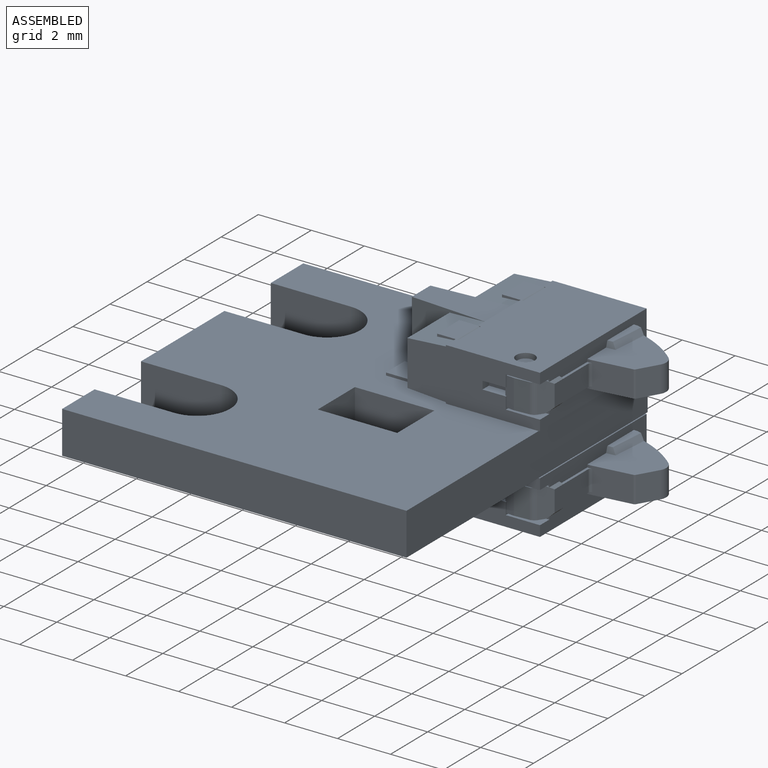
[diagram: assembled view]
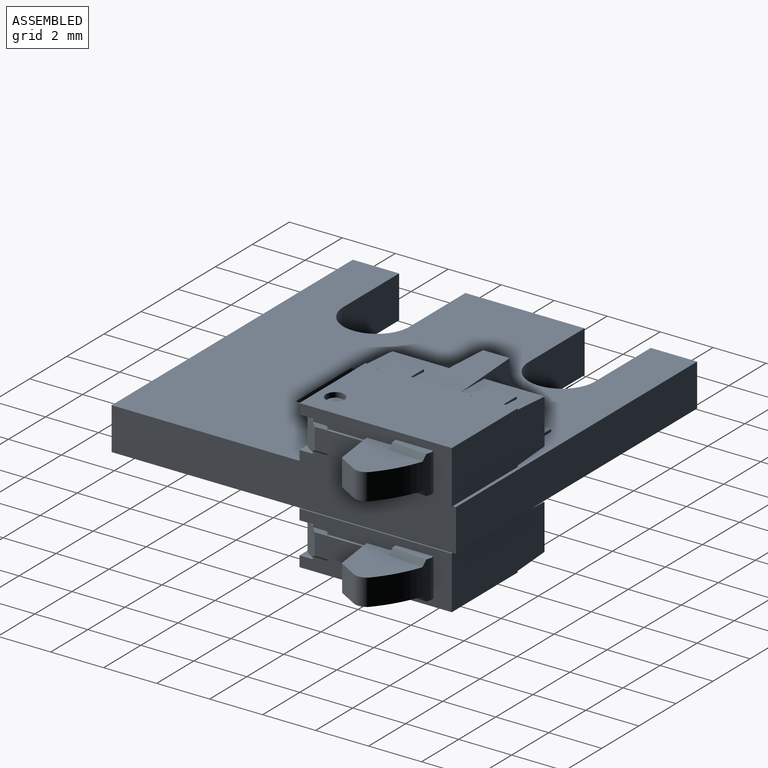
[diagram: assembled view, second angle]
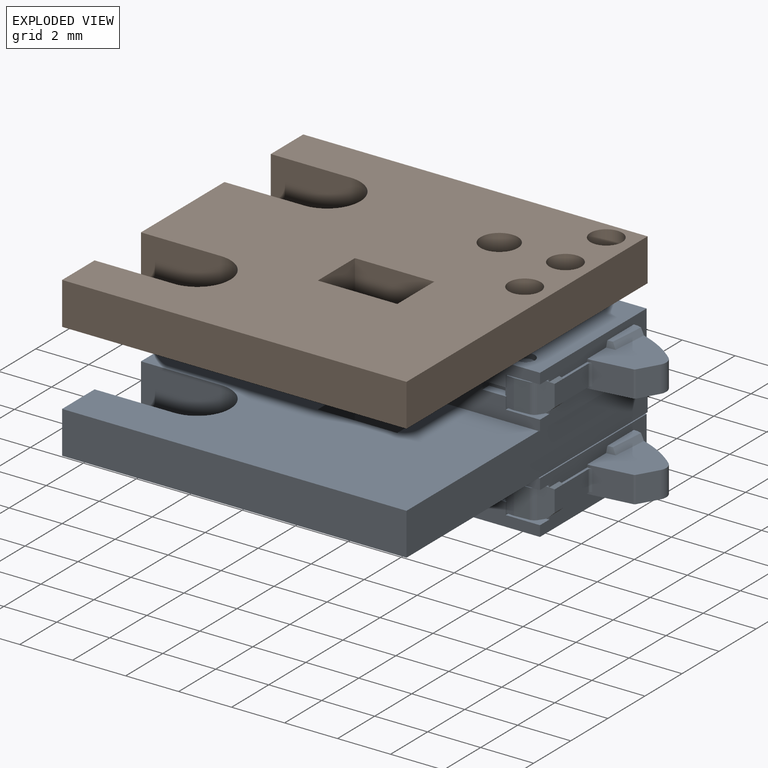
[diagram: exploded view]
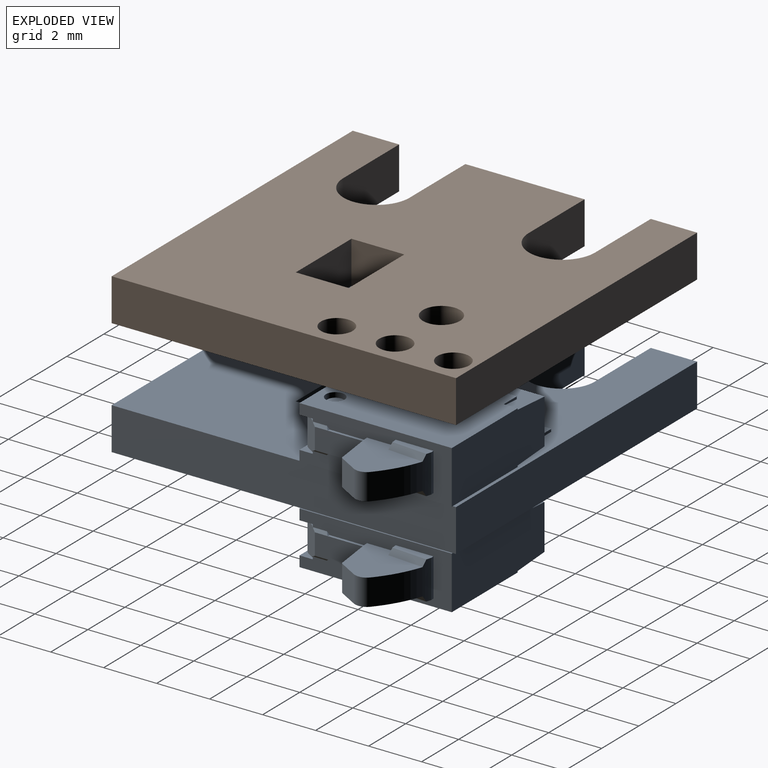
[diagram: exploded view, second angle]
FCSTD DOCUMENT  (FreeCAD 0.19R22665 (Git))
Label: PCBA-LIMIT-SW-1.0
License: All rights reserved
LicenseURL: http://en.wikipedia.org/wiki/All_rights_reserved
objects: PartDesign::CoordinateSystem×4, App::Link×3, App::DocumentObjectGroup×2, App::Part×2, App::FeaturePython×1, Sketcher::SketchObject×1, PartDesign::Pad×1, PartDesign::Body×1
note: 8 computed .brp shape members not serialized (recipe doc carries the construction recipe); baked Part::Feature solids carry a one-line shape summary decoded from their .brp
EXTERNAL_REF file=ESE-22MH22.FCStd obj=pin1
EXTERNAL_REF file=ESE-22MH22.FCStd obj=Assem1
EXTERNAL_REF file=ESE-22MH24.FCStd obj=pin1
EXTERNAL_REF file=ESE-22MH24.FCStd obj=Assem1

FEATURE [PartDesign::CoordinateSystem] LCS_Origin
  AttacherType = Attacher::AttachEngine3D
  MapMode = 2
  Support = -> [X_Axis]
FEATURE [App::DocumentObjectGroup] Constraints
FEATURE [App::FeaturePython] Variables  # WARN: FeaturePython — macro-defined, semantics opaque (R4)
FEATURE [PartDesign::CoordinateSystem] LCS_0
  AttacherType = Attacher::AttachEngine3D
  MapMode = 2
  Support = -> [X_Axis001]
FEATURE [Sketcher::SketchObject] Sketch
  MapMode = 5
  Support = -> [XY_Plane002]
  sketch-geometry (20):
    g0: Circle CenterX=0 CenterY=0 CenterZ=0 NormalX=0 NormalY=0 NormalZ=1 AngleXU=0 Radius=0.6
    g1: Circle CenterX=0 CenterY=2.2 CenterZ=0 NormalX=0 NormalY=0 NormalZ=1 AngleXU=0 Radius=0.6
    g2: Circle CenterX=0 CenterY=-2.2 CenterZ=0 NormalX=0 NormalY=0 NormalZ=1 AngleXU=0 Radius=0.6
    g3: Circle CenterX=-2.5 CenterY=0 CenterZ=0 NormalX=0 NormalY=0 NormalZ=1 AngleXU=0 Radius=0.7
    g4: LineSegment StartX=-2.5 StartY=-5.5 StartZ=0 EndX=-5.5 EndY=-5.5 EndZ=0
    g5: LineSegment StartX=-5.5 StartY=-5.5 StartZ=0 EndX=-5.5 EndY=-3.5 EndZ=0
    g6: LineSegment StartX=-5.5 StartY=-3.5 StartZ=0 EndX=-2.5 EndY=-3.5 EndZ=0
    g7: LineSegment StartX=-2.5 StartY=-3.5 StartZ=0 EndX=-2.5 EndY=-5.5 EndZ=0
    g8: LineSegment StartX=1 StartY=3 StartZ=0 EndX=-12 EndY=3 EndZ=0
    g9: LineSegment StartX=-12 StartY=-10 StartZ=0 EndX=1 EndY=-10 EndZ=0
    g10: LineSegment StartX=1 StartY=-10 StartZ=0 EndX=1 EndY=3 EndZ=0
    g11: ArcOfCircle CenterX=-9 CenterY=0 CenterZ=0 NormalX=0 NormalY=0 NormalZ=1 AngleXU=0 Radius=1.25 StartAngle=4.71239 EndAngle=7.85398
    g12: ArcOfCircle CenterX=-9 CenterY=-7 CenterZ=0 NormalX=0 NormalY=0 NormalZ=1 AngleXU=0 Radius=1.25 StartAngle=4.71239 EndAngle=7.85398
    g13: LineSegment StartX=-12 StartY=3 StartZ=0 EndX=-12 EndY=1.25 EndZ=0
    g14: LineSegment StartX=-12 StartY=1.25 StartZ=0 EndX=-9 EndY=1.25 EndZ=0
    g15: LineSegment StartX=-9 StartY=-1.25 StartZ=0 EndX=-12 EndY=-1.25 EndZ=0
    g16: LineSegment StartX=-12 StartY=-1.25 StartZ=0 EndX=-12 EndY=-5.75 EndZ=0
    g17: LineSegment StartX=-12 StartY=-5.75 StartZ=0 EndX=-9 EndY=-5.75 EndZ=0
    g18: LineSegment StartX=-9 StartY=-8.25 StartZ=0 EndX=-12 EndY=-8.25 EndZ=0
    g19: LineSegment StartX=-12 StartY=-8.25 StartZ=0 EndX=-12 EndY=-10 EndZ=0
  constraints (59):
    c: Coincident(g0,g-1)
    c: PointOnObject(g1,g-2)
    c: PointOnObject(g2,g-2)
    c: PointOnObject(g3,g-1)
    c: Coincident(g4,g5)
    c: Coincident(g5,g6)
    c: Coincident(g6,g7)
    c: Coincident(g7,g4)
    c: Horizontal(g4)
    c: Horizontal(g6)
    c: Vertical(g5)
    c: Vertical(g7)
    c: Coincident(g9,g10)
    c: Coincident(g10,g8)
    c: Horizontal(g8)
    c: Horizontal(g9)
    c: Vertical(g10)
    c: PointOnObject(g11,g-1)
    c: Coincident(g8,g13)
    c: Vertical(g13)
    c: Coincident(g13,g14)
    c: Coincident(g14,g11)
    c: Tangent(g11,g15) = 1.5708
    c: Coincident(g15,g16)
    c: Vertical(g16)
    c: Coincident(g16,g17)
    c: Coincident(g17,g12)
    c: Tangent(g12,g18) = 1.5708
    c: Coincident(g18,g19)
    c: Coincident(g19,g9)
    c: Vertical(g19)
    c: Horizontal(g17)
    c: Horizontal(g18)
    c: Horizontal(g15)
    c: Horizontal(g14)
    c: Equal(g13,g19)
    c: Diameter(g11) = 2.5
    c: Equal(g11,g12)
    c: Vertical(g11,g11)
    c: Vertical(g12,g12)
    c: Vertical(g18,g16)
    c: Vertical(g15,g13)
    c: Diameter(g2) = 1.2
    c: Equal(g2,g0)
    c: Equal(g2,g1)
    c: Diameter(g3) = 1.4
    c: DistanceY(g0,g1) = 2.2
    c: DistanceY(g2,g0) = 2.2
    c: DistanceX(g3,g0) = 2.5
    c: DistanceX(g-1,g8) = 1
    c: DistanceY(g5,g5) = 2
    c: DistanceX(g6,g6) = 3
    c: DistanceY(g12,g11) = 7
    c: DistanceX(g14,g14) = 3
    c: Vertical(g12,g11)
    c: DistanceX(g8,g8) = 13
    c: DistanceY(g10,g10) = 13
    c: DistanceX(g4,g9) = 3.5
    c: DistanceY(g9,g4) = 4.5
FEATURE [PartDesign::Pad] Pad
  Direction = (1,1,1)
  Length = 1.6
  Length2 = 100
  Profile = -> Sketch
  Refine = true
  Type = 0
FEATURE [PartDesign::Body] Body
  Group = -> [Sketch,Pad]
  Origin = -> Origin002
  Tip = -> Pad
FEATURE [App::Link] ESE_22MH22
  AssemblyType = Asm4EE
  AttachedBy = #pin1
  AttachedTo = PCB_LIMIT_SW_1_0001#LCS_0
  AttachmentOffset = pos=(0,0,0) rot=(0.707107,-0.707107,0;3.14159rad)
  LinkPlacement = pos=(-1.25,0.005,2e-16) rot=(0.57735,-0.57735,0.57735;4.18879rad)
  LinkedObject = -> <external ESE-22MH22.FCStd>#Assem1
  Placement = pos=(-1.25,0.005,2e-16) rot=(0.57735,-0.57735,0.57735;4.18879rad)
  expr: Placement = PCB_LIMIT_SW_1_0001.Placement * LCS_0.Placement * AttachmentOffset * ESE_22MH22#pin1.Placement ^ -1
FEATURE [App::Link] ESE_22MH24
  AssemblyType = Asm4EE
  AttachedBy = #pin1
  AttachedTo = PCB_LIMIT_SW_1_0001#LCS_0
  AttachmentOffset = pos=(0,0,1.6) rot=(-0.707107,-0.707107,0;3.14159rad)
  LinkPlacement = pos=(-1.25036,0.005,1.6) rot=(0.57735,-0.57735,0.57735;4.18879rad)
  LinkedObject = -> <external ESE-22MH24.FCStd>#Assem1
  Placement = pos=(-1.25036,0.005,1.6) rot=(0.57735,-0.57735,0.57735;4.18879rad)
  expr: Placement = PCB_LIMIT_SW_1_0001.Placement * LCS_0.Placement * AttachmentOffset * ESE_22MH24#pin1.Placement ^ -1
FEATURE [PartDesign::CoordinateSystem] slot1
  AttacherType = Attacher::AttachEngine3D
  MapMode = 11
  Placement = pos=(-9,0,1.6) rot=(0,0,1;0rad)
  Support = -> [Pad]
FEATURE [App::Part] PCB_LIMIT_SW_1_0
  Group = -> [LCS_0,Body,slot1]
  Origin = -> Origin001
FEATURE [App::DocumentObjectGroup] Parts
  Group = -> [PCB_LIMIT_SW_1_0]
FEATURE [PartDesign::CoordinateSystem] pcbSlot1
  AttacherType = Attacher::AttachEngine3D
  Placement = pos=(-9,0,1.6) rot=(0,0,1;0rad)
  expr: Placement = PCB_LIMIT_SW_1_0001.Placement * slot1.Placement * AttachmentOffset
FEATURE [App::Link] PCB_LIMIT_SW_1_0001
  AssemblyType = Asm4EE
  AttachedBy = #LCS_0
  AttachedTo = Parent Assembly#LCS_Origin
  LinkedObject = -> PCB_LIMIT_SW_1_0
  expr: Placement = LCS_Origin.Placement * AttachmentOffset * LCS_0.Placement ^ -1
FEATURE [App::Part] Model
  Configuration = 0
  Group = -> [LCS_Origin,Constraints,Variables,ESE_22MH22,PCB_LIMIT_SW_1_0001,ESE_22MH24,pcbSlot1]
  Origin = -> Origin
  Type = Assembly4 Model
